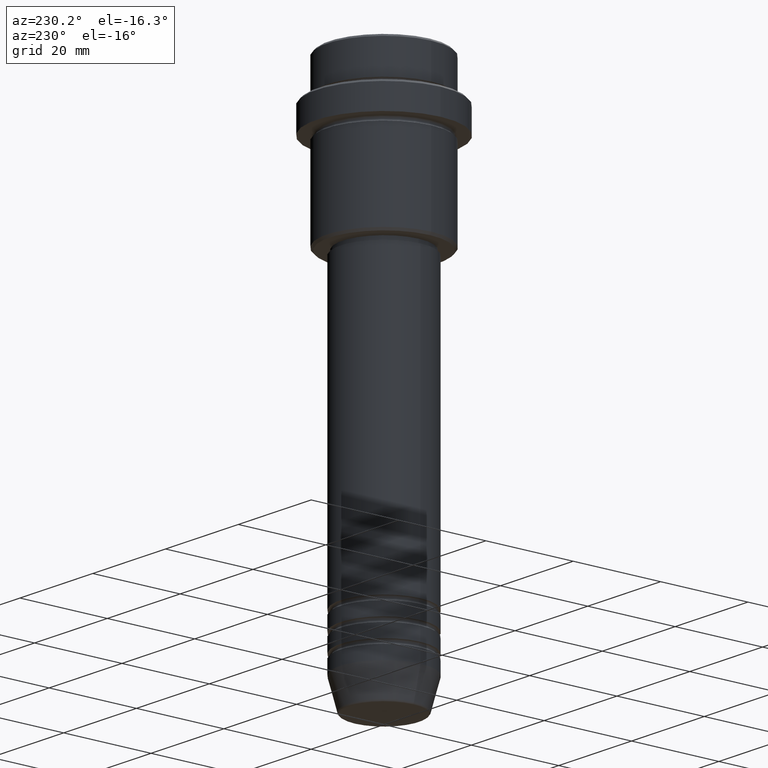
[diagram: clean part render]
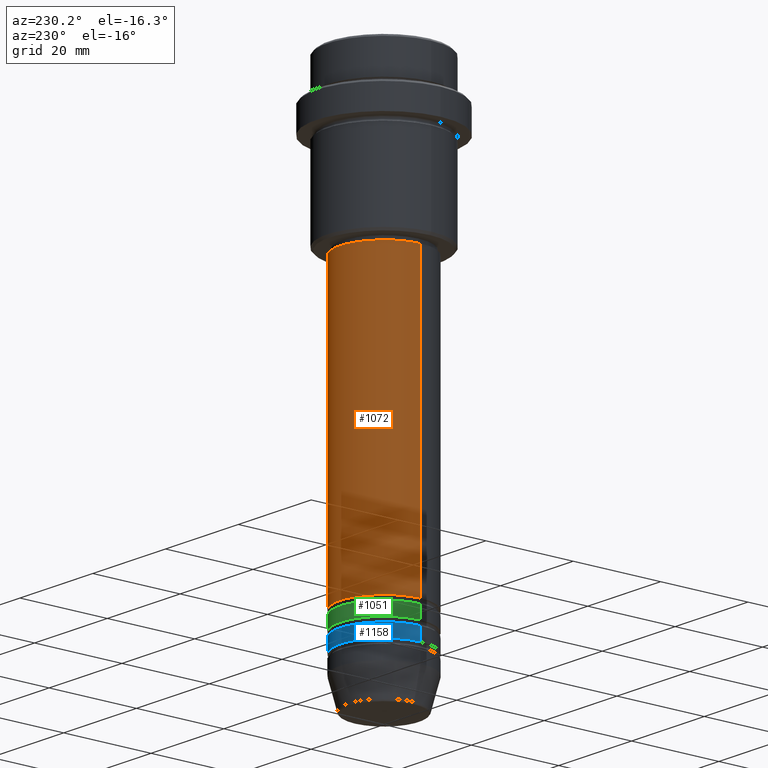
[diagram: same view with three faces highlighted in distinct colors, each labeled with its STEP entity id]
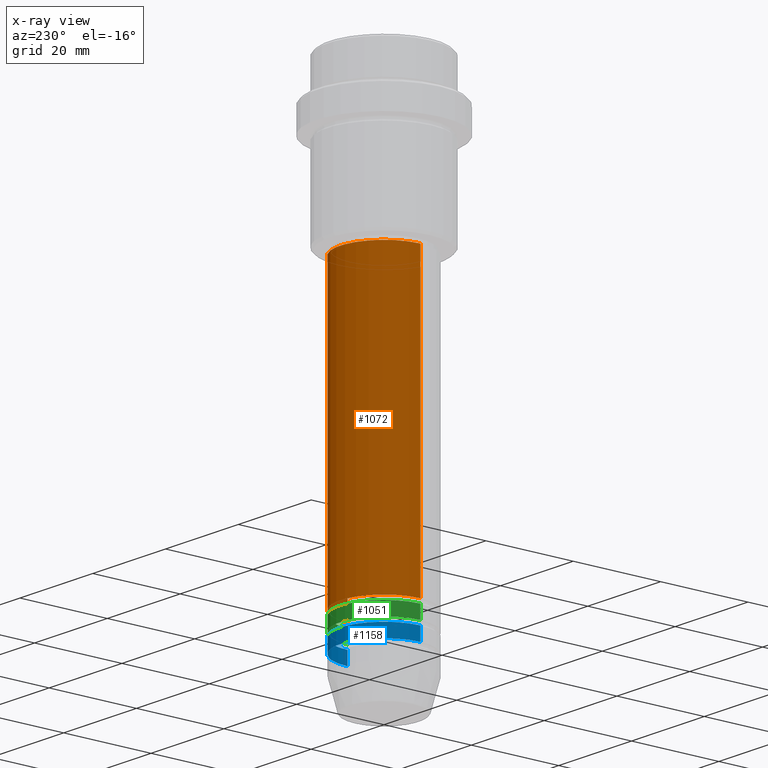
[diagram: x-ray of the same camera — body ghosted, the three highlighted faces saturated]
A machine part, auxiliary view with three faces highlighted in distinct colors.
The next image is the same camera in x-ray (body ghosted, the three faces saturated) — at least one of them is partly hidden behind the body in this view.
Their STEP definitions:

[orange] entity #1072 — the highlighted cylindrical surface (partial cylindrical patch) has radius 10 mm, axis along (-0, -0, 1).
#6 = CARTESIAN_POINT ( 'NONE',  ( 0.000000000000000000, 0.000000000000000000, 0.000000000000000000 ) ) ;
#72 = ORIENTED_EDGE ( 'NONE', *, *, #1079, .T. ) ;
#94 = AXIS2_PLACEMENT_3D ( 'NONE', #6, #745, #426 ) ;
#113 = CARTESIAN_POINT ( 'NONE',  ( 10.00000000000000178, 0.000000000000000000, 0.000000000000000000 ) ) ;
#118 = DIRECTION ( 'NONE',  ( -0.000000000000000000, -0.000000000000000000, 1.000000000000000000 ) ) ;
#202 = FACE_OUTER_BOUND ( 'NONE', #1411, .T. ) ;
#227 = VECTOR ( 'NONE', #118, 1000.000000000000000 ) ;
#289 = ORIENTED_EDGE ( 'NONE', *, *, #1106, .F. ) ;
#414 = VERTEX_POINT ( 'NONE', #559 ) ;
#417 = DIRECTION ( 'NONE',  ( 1.000000000000000000, 0.000000000000000000, 0.000000000000000000 ) ) ;
#420 = DIRECTION ( 'NONE',  ( -0.000000000000000000, -0.000000000000000000, 1.000000000000000000 ) ) ;
#426 = DIRECTION ( 'NONE',  ( 1.000000000000000000, 0.000000000000000000, 0.000000000000000000 ) ) ;
#525 = CYLINDRICAL_SURFACE ( 'NONE', #94, 10.00000000000000178 ) ;
#559 = CARTESIAN_POINT ( 'NONE',  ( -10.00000000000000000, 1.224646799147353256E-15, -101.9999999999999005 ) ) ;
#578 = EDGE_CURVE ( 'NONE', #1101, #1351, #1297, .T. ) ;
#593 = CARTESIAN_POINT ( 'NONE',  ( -10.00000000000000178, 1.224646799147353454E-15, -37.00000000000002132 ) ) ;
#622 = CARTESIAN_POINT ( 'NONE',  ( 0.000000000000000000, 0.000000000000000000, -37.00000000000002132 ) ) ;
#641 = LINE ( 'NONE', #113, #227 ) ;
#677 = CARTESIAN_POINT ( 'NONE',  ( -10.00000000000000178, 1.224646799147353454E-15, 0.000000000000000000 ) ) ;
#745 = DIRECTION ( 'NONE',  ( -0.000000000000000000, -0.000000000000000000, 1.000000000000000000 ) ) ;
#797 = AXIS2_PLACEMENT_3D ( 'NONE', #622, #420, #1314 ) ;
#839 = AXIS2_PLACEMENT_3D ( 'NONE', #1212, #1319, #417 ) ;
#888 = VECTOR ( 'NONE', #1364, 1000.000000000000000 ) ;
#950 = CARTESIAN_POINT ( 'NONE',  ( 10.00000000000000000, 0.000000000000000000, -101.9999999999999005 ) ) ;
#995 = ORIENTED_EDGE ( 'NONE', *, *, #1232, .T. ) ;
#1036 = ORIENTED_EDGE ( 'NONE', *, *, #578, .F. ) ;
#1064 = VERTEX_POINT ( 'NONE', #950 ) ;
#1072 = ADVANCED_FACE ( 'NONE', ( #202 ), #525, .T. ) ;
#1079 = EDGE_CURVE ( 'NONE', #1064, #414, #1367, .T. ) ;
#1101 = VERTEX_POINT ( 'NONE', #1204 ) ;
#1106 = EDGE_CURVE ( 'NONE', #1064, #1101, #641, .T. ) ;
#1204 = CARTESIAN_POINT ( 'NONE',  ( 10.00000000000000178, 0.000000000000000000, -37.00000000000002132 ) ) ;
#1212 = CARTESIAN_POINT ( 'NONE',  ( 0.000000000000000000, 0.000000000000000000, -101.9999999999999005 ) ) ;
#1232 = EDGE_CURVE ( 'NONE', #414, #1351, #1352, .T. ) ;
#1297 = CIRCLE ( 'NONE', #797, 10.00000000000000178 ) ;
#1314 = DIRECTION ( 'NONE',  ( 1.000000000000000000, 0.000000000000000000, 0.000000000000000000 ) ) ;
#1319 = DIRECTION ( 'NONE',  ( -0.000000000000000000, -0.000000000000000000, 1.000000000000000000 ) ) ;
#1351 = VERTEX_POINT ( 'NONE', #593 ) ;
#1352 = LINE ( 'NONE', #677, #888 ) ;
#1364 = DIRECTION ( 'NONE',  ( -0.000000000000000000, -0.000000000000000000, 1.000000000000000000 ) ) ;
#1367 = CIRCLE ( 'NONE', #839, 10.00000000000000000 ) ;
#1411 = EDGE_LOOP ( 'NONE', ( #72, #995, #1036, #289 ) ) ;

[blue] entity #1158 — the highlighted cylindrical surface (partial cylindrical patch) has radius 10 mm, axis along (-0, -0, 1).
#49 = ORIENTED_EDGE ( 'NONE', *, *, #1136, .T. ) ;
#142 = CARTESIAN_POINT ( 'NONE',  ( 0.000000000000000000, 0.000000000000000000, 0.000000000000000000 ) ) ;
#240 = CYLINDRICAL_SURFACE ( 'NONE', #540, 10.00000000000000000 ) ;
#247 = EDGE_CURVE ( 'NONE', #690, #737, #824, .T. ) ;
#283 = ORIENTED_EDGE ( 'NONE', *, *, #619, .F. ) ;
#319 = VECTOR ( 'NONE', #1187, 1000.000000000000000 ) ;
#339 = DIRECTION ( 'NONE',  ( -0.000000000000000000, -0.000000000000000000, 1.000000000000000000 ) ) ;
#345 = CIRCLE ( 'NONE', #523, 10.00000000000000000 ) ;
#349 = DIRECTION ( 'NONE',  ( -0.000000000000000000, -0.000000000000000000, 1.000000000000000000 ) ) ;
#354 = ORIENTED_EDGE ( 'NONE', *, *, #247, .T. ) ;
#394 = CARTESIAN_POINT ( 'NONE',  ( -10.00000000000000000, 1.224646799147353256E-15, 0.000000000000000000 ) ) ;
#448 = DIRECTION ( 'NONE',  ( 1.000000000000000000, 0.000000000000000000, 0.000000000000000000 ) ) ;
#461 = CARTESIAN_POINT ( 'NONE',  ( -10.00000000000000000, 1.224646799147353256E-15, -109.9999999999999005 ) ) ;
#484 = CARTESIAN_POINT ( 'NONE',  ( 0.000000000000000000, 0.000000000000000000, -106.9999999999999005 ) ) ;
#523 = AXIS2_PLACEMENT_3D ( 'NONE', #484, #916, #1143 ) ;
#540 = AXIS2_PLACEMENT_3D ( 'NONE', #142, #349, #988 ) ;
#555 = CARTESIAN_POINT ( 'NONE',  ( 0.000000000000000000, 0.000000000000000000, -109.9999999999999005 ) ) ;
#575 = EDGE_LOOP ( 'NONE', ( #49, #354, #1274, #283 ) ) ;
#619 = EDGE_CURVE ( 'NONE', #956, #669, #683, .T. ) ;
#669 = VERTEX_POINT ( 'NONE', #1254 ) ;
#683 = LINE ( 'NONE', #1329, #1248 ) ;
#690 = VERTEX_POINT ( 'NONE', #461 ) ;
#699 = CIRCLE ( 'NONE', #1148, 10.00000000000000000 ) ;
#715 = CARTESIAN_POINT ( 'NONE',  ( 10.00000000000000000, 0.000000000000000000, -109.9999999999999005 ) ) ;
#737 = VERTEX_POINT ( 'NONE', #806 ) ;
#806 = CARTESIAN_POINT ( 'NONE',  ( -10.00000000000000000, 1.224646799147353256E-15, -106.9999999999999005 ) ) ;
#824 = LINE ( 'NONE', #394, #319 ) ;
#834 = EDGE_CURVE ( 'NONE', #669, #737, #345, .T. ) ;
#916 = DIRECTION ( 'NONE',  ( -0.000000000000000000, -0.000000000000000000, 1.000000000000000000 ) ) ;
#956 = VERTEX_POINT ( 'NONE', #715 ) ;
#986 = DIRECTION ( 'NONE',  ( -0.000000000000000000, -0.000000000000000000, 1.000000000000000000 ) ) ;
#988 = DIRECTION ( 'NONE',  ( 1.000000000000000000, 0.000000000000000000, 0.000000000000000000 ) ) ;
#1136 = EDGE_CURVE ( 'NONE', #956, #690, #699, .T. ) ;
#1143 = DIRECTION ( 'NONE',  ( 1.000000000000000000, 0.000000000000000000, 0.000000000000000000 ) ) ;
#1148 = AXIS2_PLACEMENT_3D ( 'NONE', #555, #339, #448 ) ;
#1158 = ADVANCED_FACE ( 'NONE', ( #1372 ), #240, .T. ) ;
#1187 = DIRECTION ( 'NONE',  ( -0.000000000000000000, -0.000000000000000000, 1.000000000000000000 ) ) ;
#1248 = VECTOR ( 'NONE', #986, 1000.000000000000000 ) ;
#1254 = CARTESIAN_POINT ( 'NONE',  ( 10.00000000000000000, 0.000000000000000000, -106.9999999999999005 ) ) ;
#1274 = ORIENTED_EDGE ( 'NONE', *, *, #834, .F. ) ;
#1329 = CARTESIAN_POINT ( 'NONE',  ( 10.00000000000000000, 0.000000000000000000, 0.000000000000000000 ) ) ;
#1372 = FACE_OUTER_BOUND ( 'NONE', #575, .T. ) ;

[green] entity #1051 — the highlighted cylindrical surface (partial cylindrical patch) has radius 10 mm, axis along (-0, -0, 1).
#25 = VERTEX_POINT ( 'NONE', #346 ) ;
#27 = LINE ( 'NONE', #1328, #931 ) ;
#29 = CARTESIAN_POINT ( 'NONE',  ( -10.00000000000000000, 1.224646799147353256E-15, -105.9999999999999005 ) ) ;
#77 = EDGE_LOOP ( 'NONE', ( #126, #1195, #975, #209 ) ) ;
#126 = ORIENTED_EDGE ( 'NONE', *, *, #1405, .T. ) ;
#179 = DIRECTION ( 'NONE',  ( -0.000000000000000000, -0.000000000000000000, 1.000000000000000000 ) ) ;
#192 = EDGE_CURVE ( 'NONE', #25, #1113, #27, .T. ) ;
#209 = ORIENTED_EDGE ( 'NONE', *, *, #192, .F. ) ;
#214 = DIRECTION ( 'NONE',  ( 1.000000000000000000, 0.000000000000000000, 0.000000000000000000 ) ) ;
#231 = AXIS2_PLACEMENT_3D ( 'NONE', #624, #954, #214 ) ;
#346 = CARTESIAN_POINT ( 'NONE',  ( 10.00000000000000000, 0.000000000000000000, -105.9999999999999005 ) ) ;
#352 = LINE ( 'NONE', #909, #585 ) ;
#373 = EDGE_CURVE ( 'NONE', #1113, #1360, #1128, .T. ) ;
#379 = CARTESIAN_POINT ( 'NONE',  ( -10.00000000000000000, 1.224646799147353256E-15, -102.9999999999999005 ) ) ;
#463 = AXIS2_PLACEMENT_3D ( 'NONE', #827, #179, #598 ) ;
#516 = CYLINDRICAL_SURFACE ( 'NONE', #1173, 10.00000000000000000 ) ;
#531 = CARTESIAN_POINT ( 'NONE',  ( 0.000000000000000000, 0.000000000000000000, 0.000000000000000000 ) ) ;
#535 = CARTESIAN_POINT ( 'NONE',  ( 10.00000000000000000, 0.000000000000000000, -102.9999999999999005 ) ) ;
#585 = VECTOR ( 'NONE', #687, 1000.000000000000000 ) ;
#598 = DIRECTION ( 'NONE',  ( 1.000000000000000000, 0.000000000000000000, 0.000000000000000000 ) ) ;
#624 = CARTESIAN_POINT ( 'NONE',  ( 0.000000000000000000, 0.000000000000000000, -102.9999999999999005 ) ) ;
#627 = VERTEX_POINT ( 'NONE', #29 ) ;
#687 = DIRECTION ( 'NONE',  ( -0.000000000000000000, -0.000000000000000000, 1.000000000000000000 ) ) ;
#740 = FACE_OUTER_BOUND ( 'NONE', #77, .T. ) ;
#775 = EDGE_CURVE ( 'NONE', #627, #1360, #352, .T. ) ;
#827 = CARTESIAN_POINT ( 'NONE',  ( 0.000000000000000000, 0.000000000000000000, -105.9999999999999005 ) ) ;
#909 = CARTESIAN_POINT ( 'NONE',  ( -10.00000000000000000, 1.224646799147353256E-15, 0.000000000000000000 ) ) ;
#931 = VECTOR ( 'NONE', #1206, 1000.000000000000000 ) ;
#954 = DIRECTION ( 'NONE',  ( -0.000000000000000000, -0.000000000000000000, 1.000000000000000000 ) ) ;
#975 = ORIENTED_EDGE ( 'NONE', *, *, #373, .F. ) ;
#1051 = ADVANCED_FACE ( 'NONE', ( #740 ), #516, .T. ) ;
#1077 = CIRCLE ( 'NONE', #463, 10.00000000000000000 ) ;
#1113 = VERTEX_POINT ( 'NONE', #535 ) ;
#1128 = CIRCLE ( 'NONE', #231, 10.00000000000000000 ) ;
#1173 = AXIS2_PLACEMENT_3D ( 'NONE', #531, #1326, #1412 ) ;
#1195 = ORIENTED_EDGE ( 'NONE', *, *, #775, .T. ) ;
#1206 = DIRECTION ( 'NONE',  ( -0.000000000000000000, -0.000000000000000000, 1.000000000000000000 ) ) ;
#1326 = DIRECTION ( 'NONE',  ( -0.000000000000000000, -0.000000000000000000, 1.000000000000000000 ) ) ;
#1328 = CARTESIAN_POINT ( 'NONE',  ( 10.00000000000000000, 0.000000000000000000, 0.000000000000000000 ) ) ;
#1360 = VERTEX_POINT ( 'NONE', #379 ) ;
#1405 = EDGE_CURVE ( 'NONE', #25, #627, #1077, .T. ) ;
#1412 = DIRECTION ( 'NONE',  ( 1.000000000000000000, 0.000000000000000000, 0.000000000000000000 ) ) ;